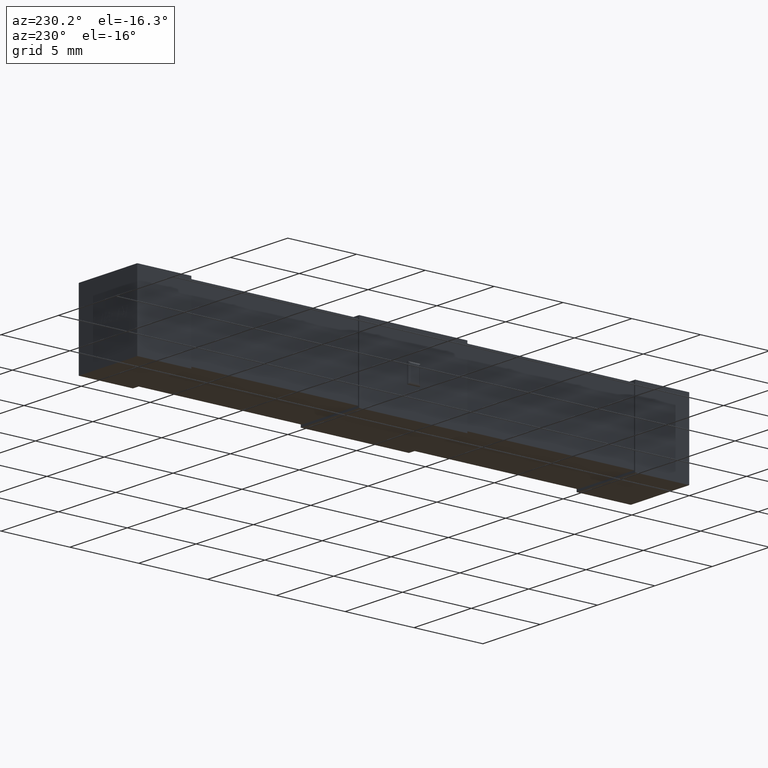
[diagram: clean part render]
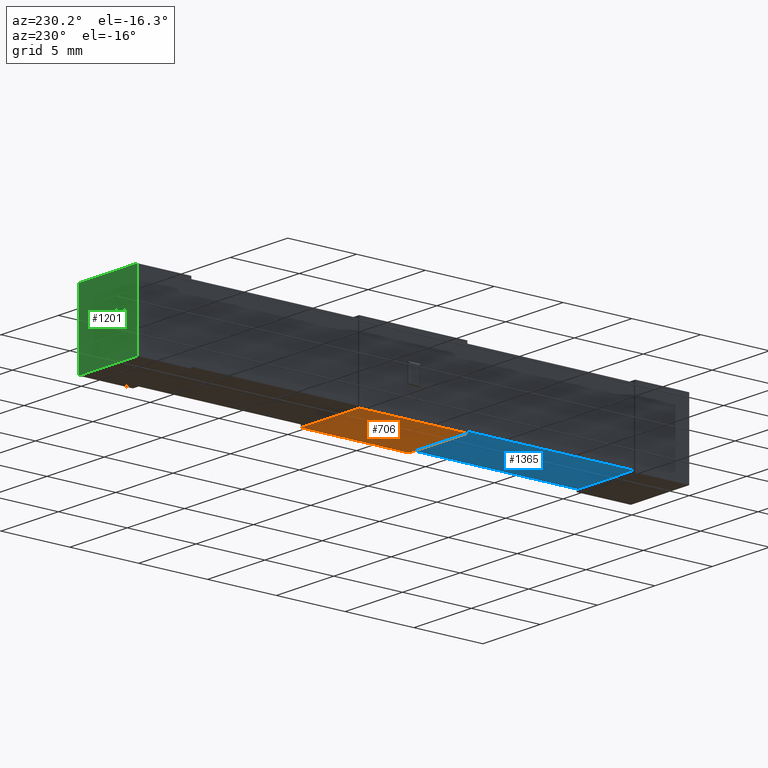
[diagram: same view with three faces highlighted in distinct colors, each labeled with its STEP entity id]
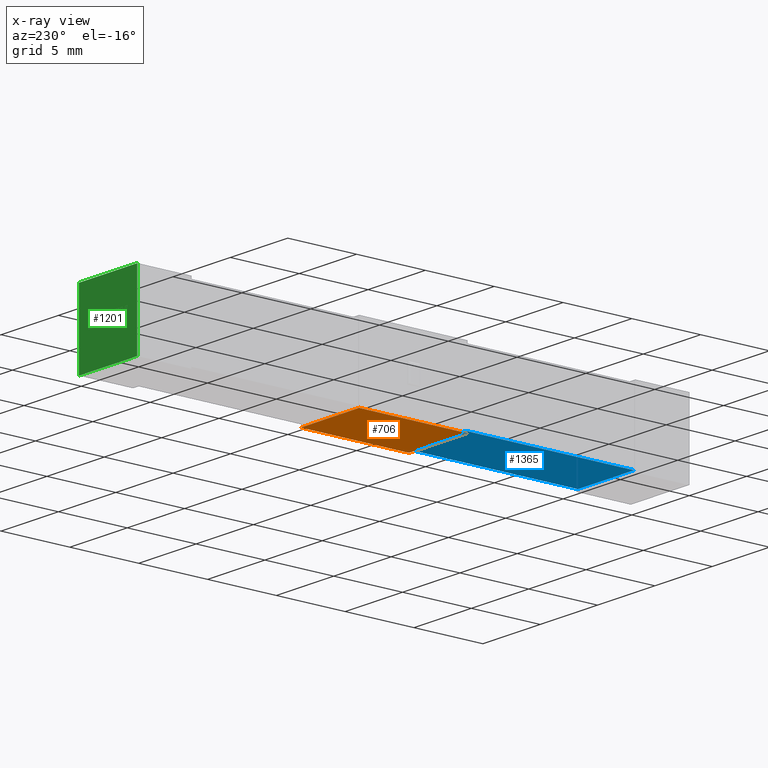
[diagram: x-ray of the same camera — body ghosted, the three highlighted faces saturated]
A machine part, auxiliary view with three faces highlighted in distinct colors.
The next image is the same camera in x-ray (body ghosted, the three faces saturated) — at least one of them is partly hidden behind the body in this view.
Their STEP definitions:

[orange] entity #706 — the highlighted planar face has unit normal (0, 0, -1).
#42 = CARTESIAN_POINT ( 'NONE',  ( 5.099999999999999645, 0.000000000000000000, 0.000000000000000000 ) ) ;
#269 = VERTEX_POINT ( 'NONE', #928 ) ;
#351 = CARTESIAN_POINT ( 'NONE',  ( 5.099999999999998757, 23.97980000000000089, 1.734723475976807094E-15 ) ) ;
#472 = VECTOR ( 'NONE', #3298, 1000.000000000000000 ) ;
#507 = EDGE_CURVE ( 'NONE', #582, #2690, #1638, .T. ) ;
#582 = VERTEX_POINT ( 'NONE', #2693 ) ;
#705 = CARTESIAN_POINT ( 'NONE',  ( 9.895391066470449996E-16, 23.97980000000000445, 1.734723475976807094E-15 ) ) ;
#706 = ADVANCED_FACE ( 'NONE', ( #1032 ), #2586, .T. ) ;
#731 = CARTESIAN_POINT ( 'NONE',  ( 0.000000000000000000, 0.000000000000000000, 0.000000000000000000 ) ) ;
#928 = CARTESIAN_POINT ( 'NONE',  ( 0.000000000000000000, 16.12020000000000053, 0.000000000000000000 ) ) ;
#963 = EDGE_CURVE ( 'NONE', #582, #269, #2756, .T. ) ;
#1032 = FACE_OUTER_BOUND ( 'NONE', #3224, .T. ) ;
#1071 = DIRECTION ( 'NONE',  ( 0.000000000000000000, 1.000000000000000000, 0.000000000000000000 ) ) ;
#1105 = LINE ( 'NONE', #705, #2322 ) ;
#1113 = ORIENTED_EDGE ( 'NONE', *, *, #963, .T. ) ;
#1222 = CARTESIAN_POINT ( 'NONE',  ( 0.000000000000000000, 0.000000000000000000, 0.000000000000000000 ) ) ;
#1348 = ORIENTED_EDGE ( 'NONE', *, *, #2411, .T. ) ;
#1441 = DIRECTION ( 'NONE',  ( 1.000000000000000000, -6.802837160693364596E-16, 0.000000000000000000 ) ) ;
#1615 = EDGE_CURVE ( 'NONE', #2253, #269, #2320, .T. ) ;
#1638 = LINE ( 'NONE', #42, #3053 ) ;
#1792 = DIRECTION ( 'NONE',  ( 0.000000000000000000, 0.000000000000000000, -1.000000000000000000 ) ) ;
#1951 = VECTOR ( 'NONE', #3242, 1000.000000000000000 ) ;
#2253 = VERTEX_POINT ( 'NONE', #3351 ) ;
#2320 = LINE ( 'NONE', #1222, #472 ) ;
#2322 = VECTOR ( 'NONE', #1441, 1000.000000000000000 ) ;
#2411 = EDGE_CURVE ( 'NONE', #2253, #2690, #1105, .T. ) ;
#2470 = ORIENTED_EDGE ( 'NONE', *, *, #1615, .F. ) ;
#2586 = PLANE ( 'NONE',  #3320 ) ;
#2650 = ORIENTED_EDGE ( 'NONE', *, *, #507, .F. ) ;
#2690 = VERTEX_POINT ( 'NONE', #351 ) ;
#2693 = CARTESIAN_POINT ( 'NONE',  ( 5.099999999999997868, 16.12020000000000053, 1.734723475976807094E-15 ) ) ;
#2756 = LINE ( 'NONE', #2963, #1951 ) ;
#2895 = DIRECTION ( 'NONE',  ( -1.000000000000000000, 0.000000000000000000, -0.000000000000000000 ) ) ;
#2963 = CARTESIAN_POINT ( 'NONE',  ( 2.936678531419370698E-15, 16.12020000000000053, 1.734723475976807094E-15 ) ) ;
#3053 = VECTOR ( 'NONE', #1071, 1000.000000000000000 ) ;
#3224 = EDGE_LOOP ( 'NONE', ( #2650, #1113, #2470, #1348 ) ) ;
#3242 = DIRECTION ( 'NONE',  ( -1.000000000000000000, -0.000000000000000000, 0.000000000000000000 ) ) ;
#3298 = DIRECTION ( 'NONE',  ( -0.000000000000000000, -1.000000000000000000, -0.000000000000000000 ) ) ;
#3320 = AXIS2_PLACEMENT_3D ( 'NONE', #731, #1792, #2895 ) ;
#3351 = CARTESIAN_POINT ( 'NONE',  ( 9.895391066470449996E-16, 23.97980000000000445, 1.734723475976807094E-15 ) ) ;

[blue] entity #1365 — the highlighted planar face has unit normal (0, 0, -1).
#64 = VECTOR ( 'NONE', #1027, 1000.000000000000000 ) ;
#84 = CARTESIAN_POINT ( 'NONE',  ( 4.999999999999999112, 3.929799999999999738, 0.1500000000000002998 ) ) ;
#102 = EDGE_CURVE ( 'NONE', #894, #2431, #1322, .T. ) ;
#235 = CARTESIAN_POINT ( 'NONE',  ( 0.000000000000000000, 0.000000000000000000, 0.1500000000000002998 ) ) ;
#243 = ORIENTED_EDGE ( 'NONE', *, *, #2466, .F. ) ;
#270 = EDGE_CURVE ( 'NONE', #3027, #1473, #1498, .T. ) ;
#299 = LINE ( 'NONE', #3216, #3113 ) ;
#329 = ORIENTED_EDGE ( 'NONE', *, *, #3325, .F. ) ;
#454 = CARTESIAN_POINT ( 'NONE',  ( 4.999999999999999112, 16.12020000000000053, 0.1500000000000000777 ) ) ;
#894 = VERTEX_POINT ( 'NONE', #84 ) ;
#1018 = CARTESIAN_POINT ( 'NONE',  ( 0.1000000000000000056, 16.12020000000000053, 0.1500000000000000777 ) ) ;
#1027 = DIRECTION ( 'NONE',  ( -0.000000000000000000, 1.000000000000000000, 1.222911460795026316E-16 ) ) ;
#1167 = ORIENTED_EDGE ( 'NONE', *, *, #270, .T. ) ;
#1182 = EDGE_LOOP ( 'NONE', ( #243, #1167, #329, #3009 ) ) ;
#1200 = VECTOR ( 'NONE', #2064, 1000.000000000000000 ) ;
#1319 = DIRECTION ( 'NONE',  ( -1.000000000000000000, -0.000000000000000000, 0.000000000000000000 ) ) ;
#1322 = LINE ( 'NONE', #1836, #64 ) ;
#1365 = ADVANCED_FACE ( 'NONE', ( #2364 ), #2036, .T. ) ;
#1390 = CARTESIAN_POINT ( 'NONE',  ( 0.1000000000000000056, 3.929799999999999738, 0.1500000000000002998 ) ) ;
#1473 = VERTEX_POINT ( 'NONE', #2954 ) ;
#1498 = LINE ( 'NONE', #1018, #1200 ) ;
#1680 = AXIS2_PLACEMENT_3D ( 'NONE', #235, #2815, #2868 ) ;
#1715 = CARTESIAN_POINT ( 'NONE',  ( 4.429571965451960060E-15, 3.929799999999999738, 0.1500000000000002998 ) ) ;
#1836 = CARTESIAN_POINT ( 'NONE',  ( 4.999999999999999112, 16.12020000000000053, 0.1500000000000000777 ) ) ;
#2036 = PLANE ( 'NONE',  #1680 ) ;
#2064 = DIRECTION ( 'NONE',  ( 0.000000000000000000, 1.000000000000000000, 1.222911460795026316E-16 ) ) ;
#2258 = LINE ( 'NONE', #1715, #3306 ) ;
#2364 = FACE_OUTER_BOUND ( 'NONE', #1182, .T. ) ;
#2431 = VERTEX_POINT ( 'NONE', #454 ) ;
#2466 = EDGE_CURVE ( 'NONE', #3027, #894, #2258, .T. ) ;
#2815 = DIRECTION ( 'NONE',  ( 0.000000000000000000, 0.000000000000000000, -1.000000000000000000 ) ) ;
#2868 = DIRECTION ( 'NONE',  ( 1.000000000000000000, 0.000000000000000000, 0.000000000000000000 ) ) ;
#2954 = CARTESIAN_POINT ( 'NONE',  ( 0.1000000000000000056, 16.12020000000000053, 0.1500000000000000777 ) ) ;
#3009 = ORIENTED_EDGE ( 'NONE', *, *, #102, .F. ) ;
#3027 = VERTEX_POINT ( 'NONE', #1390 ) ;
#3113 = VECTOR ( 'NONE', #1319, 1000.000000000000000 ) ;
#3216 = CARTESIAN_POINT ( 'NONE',  ( 2.936678531419370698E-15, 16.12020000000000053, 0.1500000000000002998 ) ) ;
#3301 = DIRECTION ( 'NONE',  ( 1.000000000000000000, 0.000000000000000000, 0.000000000000000000 ) ) ;
#3306 = VECTOR ( 'NONE', #3301, 1000.000000000000000 ) ;
#3325 = EDGE_CURVE ( 'NONE', #2431, #1473, #299, .T. ) ;

[green] entity #1201 — the highlighted planar face has unit normal (0, -1, 0).
#46 = CARTESIAN_POINT ( 'NONE',  ( 5.099999999999999645, 40.10000000000000142, 0.000000000000000000 ) ) ;
#97 = CARTESIAN_POINT ( 'NONE',  ( 5.099999999999999645, 40.10000000000000142, 5.400000000000000355 ) ) ;
#104 = ORIENTED_EDGE ( 'NONE', *, *, #858, .F. ) ;
#206 = EDGE_CURVE ( 'NONE', #650, #1537, #1926, .T. ) ;
#226 = LINE ( 'NONE', #2318, #1138 ) ;
#229 = EDGE_CURVE ( 'NONE', #2338, #2692, #1388, .T. ) ;
#324 = ORIENTED_EDGE ( 'NONE', *, *, #688, .T. ) ;
#333 = CARTESIAN_POINT ( 'NONE',  ( 0.000000000000000000, 40.10000000000000142, 0.000000000000000000 ) ) ;
#336 = ORIENTED_EDGE ( 'NONE', *, *, #229, .T. ) ;
#340 = DIRECTION ( 'NONE',  ( 0.000000000000000000, -0.000000000000000000, -1.000000000000000000 ) ) ;
#360 = AXIS2_PLACEMENT_3D ( 'NONE', #2703, #1983, #340 ) ;
#650 = VERTEX_POINT ( 'NONE', #1547 ) ;
#688 = EDGE_CURVE ( 'NONE', #2692, #1537, #226, .T. ) ;
#729 = VECTOR ( 'NONE', #2689, 1000.000000000000000 ) ;
#858 = EDGE_CURVE ( 'NONE', #2338, #650, #1065, .T. ) ;
#1065 = LINE ( 'NONE', #2113, #729 ) ;
#1138 = VECTOR ( 'NONE', #2336, 1000.000000000000000 ) ;
#1163 = DIRECTION ( 'NONE',  ( -0.000000000000000000, -0.000000000000000000, -1.000000000000000000 ) ) ;
#1201 = ADVANCED_FACE ( 'NONE', ( #1665 ), #2475, .F. ) ;
#1313 = ORIENTED_EDGE ( 'NONE', *, *, #206, .F. ) ;
#1388 = LINE ( 'NONE', #2702, #1518 ) ;
#1442 = CARTESIAN_POINT ( 'NONE',  ( 0.000000000000000000, 40.10000000000000142, 5.400000000000000355 ) ) ;
#1518 = VECTOR ( 'NONE', #2426, 1000.000000000000000 ) ;
#1537 = VERTEX_POINT ( 'NONE', #333 ) ;
#1547 = CARTESIAN_POINT ( 'NONE',  ( 0.000000000000000000, 40.10000000000000142, 5.400000000000000355 ) ) ;
#1665 = FACE_OUTER_BOUND ( 'NONE', #2027, .T. ) ;
#1926 = LINE ( 'NONE', #1442, #1973 ) ;
#1973 = VECTOR ( 'NONE', #1163, 1000.000000000000000 ) ;
#1983 = DIRECTION ( 'NONE',  ( 0.000000000000000000, -1.000000000000000000, 0.000000000000000000 ) ) ;
#2027 = EDGE_LOOP ( 'NONE', ( #324, #1313, #104, #336 ) ) ;
#2113 = CARTESIAN_POINT ( 'NONE',  ( 0.000000000000000000, 40.10000000000000142, 5.400000000000000355 ) ) ;
#2318 = CARTESIAN_POINT ( 'NONE',  ( 0.000000000000000000, 40.10000000000000142, 0.000000000000000000 ) ) ;
#2336 = DIRECTION ( 'NONE',  ( -1.000000000000000000, -0.000000000000000000, -0.000000000000000000 ) ) ;
#2338 = VERTEX_POINT ( 'NONE', #97 ) ;
#2426 = DIRECTION ( 'NONE',  ( -0.000000000000000000, -0.000000000000000000, -1.000000000000000000 ) ) ;
#2475 = PLANE ( 'NONE',  #360 ) ;
#2689 = DIRECTION ( 'NONE',  ( -1.000000000000000000, -0.000000000000000000, -0.000000000000000000 ) ) ;
#2692 = VERTEX_POINT ( 'NONE', #46 ) ;
#2702 = CARTESIAN_POINT ( 'NONE',  ( 5.099999999999999645, 40.10000000000000142, 5.400000000000000355 ) ) ;
#2703 = CARTESIAN_POINT ( 'NONE',  ( 0.000000000000000000, 40.10000000000000142, 5.400000000000000355 ) ) ;